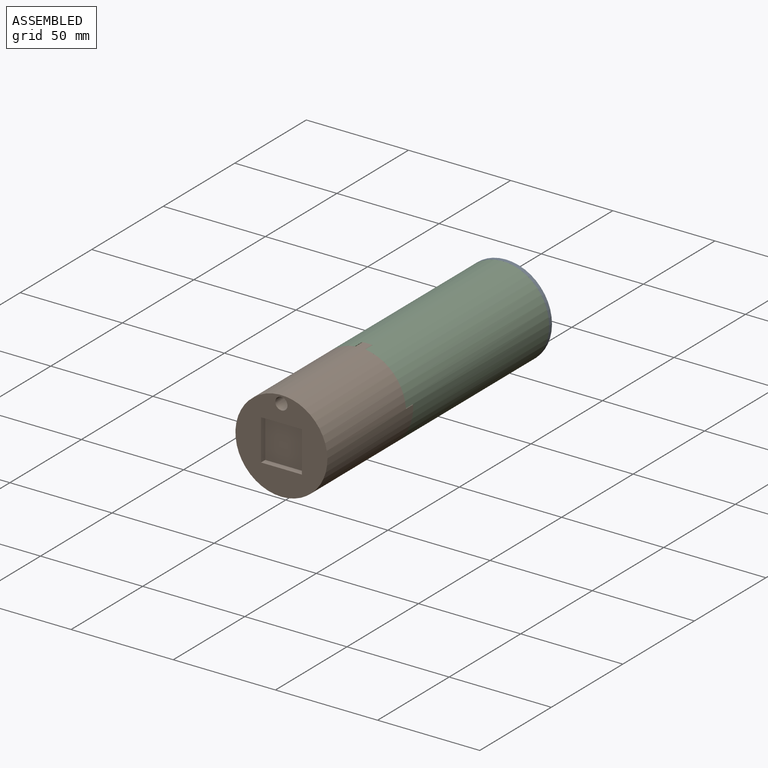
[diagram: assembled view]
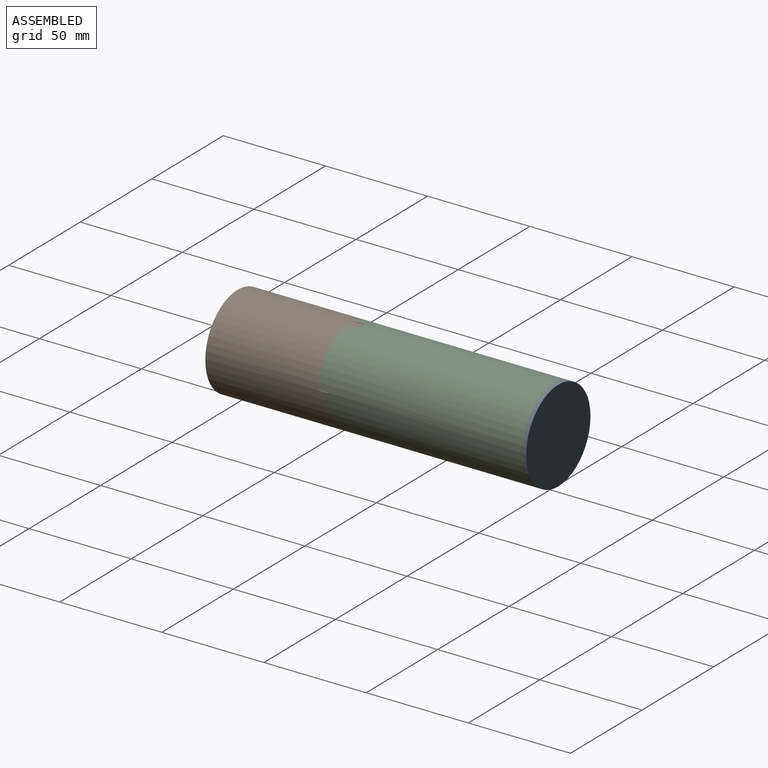
[diagram: assembled view, second angle]
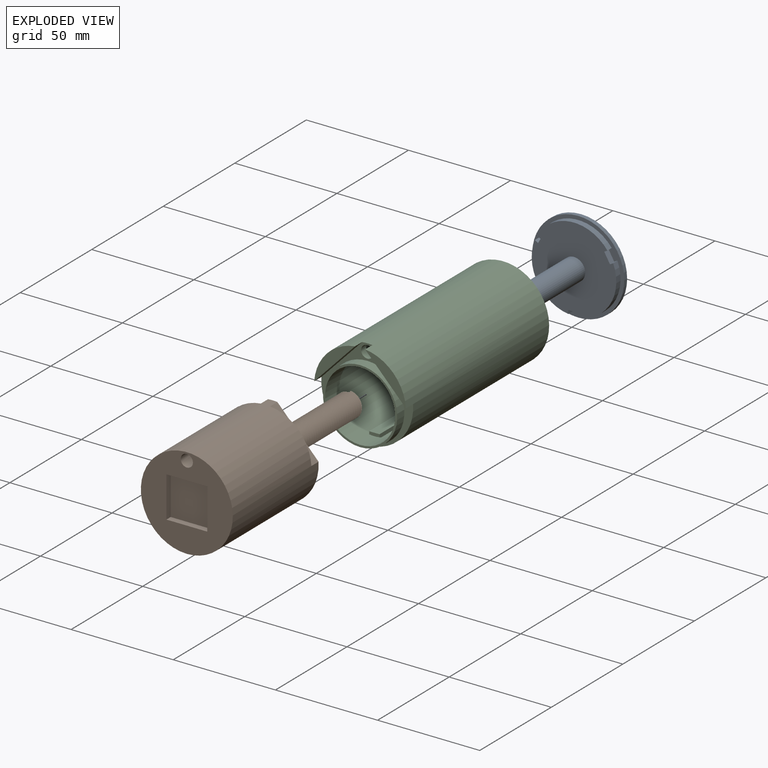
[diagram: exploded view]
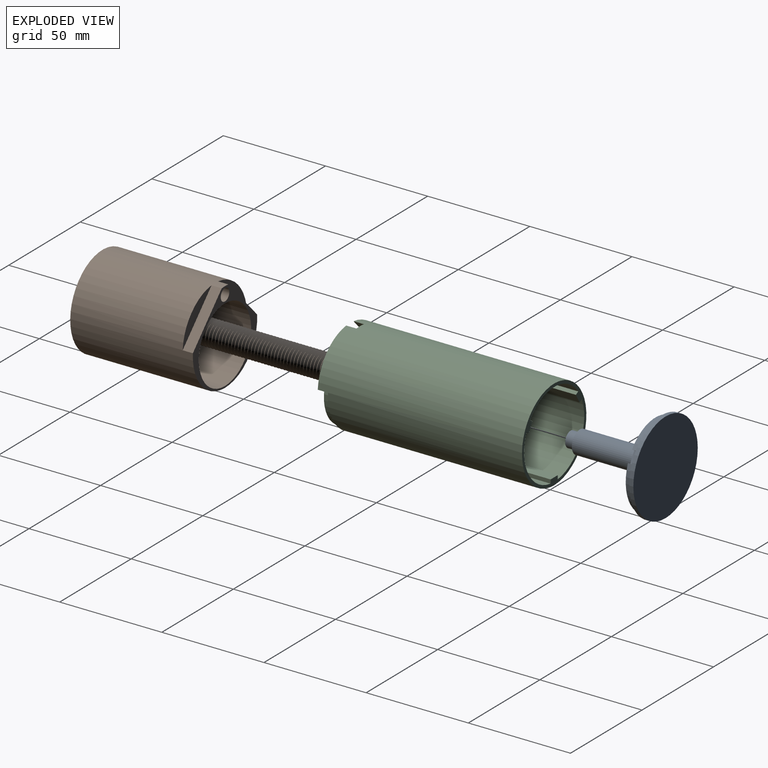
[diagram: exploded view, second angle]
ASSEMBLY  parts=3 mates=4
PART A: 20 faces, bbox 45x45x46.5 mm
  f0: plane 45x45mm, normal (0,0,1), area 276.8mm2, adj f1,f3,f4,f5,f6,f7,f8,f9
  f1: cylinder r=22.5mm len=45mm, axis (0,0,-1), area 282.7mm2, adj f0,f2
  f2: plane 45x45mm, normal (0,0,-1), area 1590.4mm2, adj f1
  f3: plane 3x1.57mm, normal (-0.5,-0.87,0), area 5.4mm2, adj f0,f4,f14,f15
  f4: plane 4.85x3mm, normal (-0.87,0.5,0), area 16.8mm2, adj f0,f3,f5,f15
  f5: plane 3x1.57mm, normal (0.5,0.87,0), area 5.4mm2, adj f0,f4,f6,f15
  f6: cylinder r=20.7mm len=28.34mm, axis (0,0,-1), area 113.2mm2, adj f0,f5,f7,f15
  f7: plane 3x1.81mm, normal (1,0,0), area 5.4mm2, adj f0,f6,f8,f15
  f8: plane 5.6x3mm, normal (0,-1,0), area 16.8mm2, adj f0,f7,f9,f15
  f9: plane 3x1.81mm, normal (-1,0,0), area 5.4mm2, adj f0,f8,f10,f15
  f10: cylinder r=20.7mm len=28.34mm, axis (0,0,-1), area 113.2mm2, adj f0,f9,f11,f15
  f11: plane 3x1.57mm, normal (-0.5,0.87,0), area 5.4mm2, adj f0,f10,f12,f15
  f12: plane 4.85x3mm, normal (0.87,0.5,0), area 16.8mm2, adj f0,f11,f13,f15
  f13: plane 3x1.57mm, normal (0.5,-0.87,0), area 5.4mm2, adj f0,f12,f14,f15
  f14: cylinder r=20.7mm len=32.72mm, axis (0,0,-1), area 113.2mm2, adj f0,f3,f13,f15
  f15: plane 41.4x41.21mm, normal (0,0,1), area 1218.6mm2, adj f3,f4,f5,f6,f7,f8,f9,f10
  f16: cylinder r=5.5mm len=37mm, axis (0,0,-1), area 1278.6mm2, adj f15,f17
  f17: plane 11x11mm, normal (0,0,1), area 50.9mm2, adj f16,f18
  f18: cylinder r=3.75mm len=7.5mm, axis (0,0,-1), area 106mm2, adj f17,f19
  f19: plane 7.5x7.5mm, normal (0,0,1), area 44.2mm2, adj f18
PART B: 22 faces, bbox 45.8x115.8x45.8 mm
  f0: plane 45x45mm, normal (0,-1,0), area 296.6mm2, adj f1,f2,f3,f10,f12
  f1: cylinder r=3mm len=60mm, axis (0,1,0), area 1131mm2, adj f0,f20
  f2: cylinder r=18.3mm len=55mm, axis (0,1,0), area 6324mm2, adj f0,f4
  f3: cylinder r=22.5mm len=60mm, axis (0,1,0), area 8165.4mm2, adj f0,f10,f11,f12,f13,f20
  f4: plane 37.44x37.44mm, normal (0,-1,0), area 957.8mm2, adj f2,f5,f7,f8
  f5: cylinder r=5mm len=110mm, axis (0,1,0), area 873mm2, adj f4,f6,f7,f8,f9
  f6: plane 10x10mm, normal (0,-1,0), area 28.3mm2, adj f5,f14
  f7: bspline ~110.88x13.86mm, area 2954.7mm2, adj f4,f5,f8,f9
  f8: bspline ~110.08x13.86mm, area 2929.1mm2, adj f4,f5,f7,f9
  f9: plane 1.5x1mm, normal (1,0,0), area 0.8mm2, adj f5,f7,f8
  f10: plane 21.03x20.17mm, normal (0.72,0,0.69), area 145.7mm2, adj f0,f3,f11
  f11: plane 21.03x20.17mm, normal (0,-1,0), area 106.8mm2, adj f3,f10
  f12: plane 21.03x20.17mm, normal (-0.72,0,0.69), area 145.7mm2, adj f0,f3,f13
  f13: plane 21.03x20.17mm, normal (0,-1,0), area 106.8mm2, adj f3,f12
  f14: cylinder r=4mm len=8mm, axis (0,-1,0), area 125.7mm2, adj f6,f15
  f15: plane 8x8mm, normal (0,-1,0), area 50.3mm2, adj f14
  f16: plane 20x3mm, normal (1,0,0), area 60mm2, adj f17,f19,f20,f21
  f17: plane 20x3mm, normal (0,0,1), area 60mm2, adj f16,f18,f20,f21
  f18: plane 20x3mm, normal (-1,0,0), area 60mm2, adj f17,f19,f20,f21
  f19: plane 20x3mm, normal (0,0,-1), area 60mm2, adj f16,f18,f20,f21
  f20: plane 45x45mm, normal (0,1,0), area 1162.2mm2, adj f1,f3,f16,f17,f18,f19
  f21: plane 20x20mm, normal (0,1,0), area 400mm2, adj f16,f17,f18,f19
PART C: 28 faces, bbox 45x100x46.3 mm
  f0: cylinder r=21mm len=90mm, axis (0,1,0), area 3507.3mm2, adj f4,f15,f18,f25
  f1: plane 41.32x20.38mm, normal (0,-1,0), area 189.9mm2, adj f2,f3,f12,f16,f21,f22,f23,f27
  f2: cylinder r=21mm len=90mm, axis (0,1,0), area 3507.3mm2, adj f1,f15,f23,f27
  f3: cylinder r=21mm len=92mm, axis (0,1,0), area 3489.4mm2, adj f1,f4,f6,f15,f16,f17,f20,f21
  f4: plane 41.32x20.38mm, normal (0,-1,0), area 189.9mm2, adj f0,f3,f12,f16,f18,f19,f20,f25
  f5: plane 45x45mm, normal (0,1,0), area 322.4mm2, adj f6,f7,f8,f10,f13
  f6: cylinder r=3mm len=10mm, axis (0,1,0), area 73.1mm2, adj f3,f5,f16,f17
  f7: cylinder r=22.5mm len=100mm, axis (0,1,0), area 13742.6mm2, adj f5,f8,f9,f10,f11,f15
  f8: plane 20.77x19.93mm, normal (-0.72,0,-0.69), area 143.9mm2, adj f5,f7,f9
  f9: plane 20.77x19.93mm, normal (0,1,0), area 102.4mm2, adj f7,f8
  f10: plane 20.77x19.93mm, normal (0.72,0,-0.69), area 143.9mm2, adj f5,f7,f11
  f11: plane 20.77x19.93mm, normal (0,1,0), area 102.4mm2, adj f7,f10
  f12: cylinder r=17.15mm len=34.3mm, axis (0,-1,0), area 1077.6mm2, adj f1,f4,f14,f16,f24
  f13: cylinder r=18.15mm len=36.3mm, axis (0,-1,0), area 570.2mm2, adj f5,f14
  f14: plane 36.3x36.3mm, normal (0,1,0), area 110.9mm2, adj f12,f13
  f15: plane 45x45mm, normal (0,-1,0), area 234.2mm2, adj f0,f2,f3,f7,f18,f19,f20,f21
  f16: torus R=5mm, axis (0,-1,0), area 50.6mm2, adj f1,f3,f4,f6,f12
  f17: cone r=21.7mm half-angle=8deg, axis (0,1,0), area 14.2mm2, adj f3,f6
  f18: plane 90x1.6mm, normal (0.5,0,-0.87), area 166.6mm2, adj f0,f4,f15,f19
  f19: plane 90x4.33mm, normal (-0.87,0,-0.5), area 450mm2, adj f4,f15,f18,f20
  f20: plane 90x1.6mm, normal (-0.5,0,0.87), area 166.6mm2, adj f3,f4,f15,f19
  f21: plane 90x1.6mm, normal (0.5,0,0.87), area 166.6mm2, adj f1,f3,f15,f22
  f22: plane 90x4.33mm, normal (0.87,0,-0.5), area 450mm2, adj f1,f15,f21,f23
  f23: plane 90x1.6mm, normal (-0.5,0,-0.87), area 166.6mm2, adj f1,f2,f15,f22
  f24: plane 5x1.55mm, normal (0,1,0), area 7.4mm2, adj f12,f25,f26,f27
  f25: plane 90x1.85mm, normal (1,0,0), area 166.6mm2, adj f0,f4,f15,f24,f26
  f26: plane 90x5mm, normal (0,0,1), area 450mm2, adj f15,f24,f25,f27
  f27: plane 90x1.85mm, normal (-1,0,0), area 166.6mm2, adj f1,f2,f15,f24,f26
PLACE A rot(axis=(1,0,0),90deg) t=(0,154,0)mm
PLACE B rot(axis=(0,0,1),180deg) t=(0,2,0)mm
PLACE C rot(axis=(0,0,1),180deg) t=(0,57,0)mm
MATE slider B.f2 <-> C.f12  axis (0,-1,0) through (0,57,-3.4)mm
MATE planar A.f6 <-> C.f7  axis (0,-1,0) through (0,152,0)mm
MATE planar B.f0 <-> C.f5  axis (0,1,0) through (0,57,0.65)mm
MATE slider C.f0 <-> A.f14  axis (0,-1,0) through (0,105.72,0)mm
